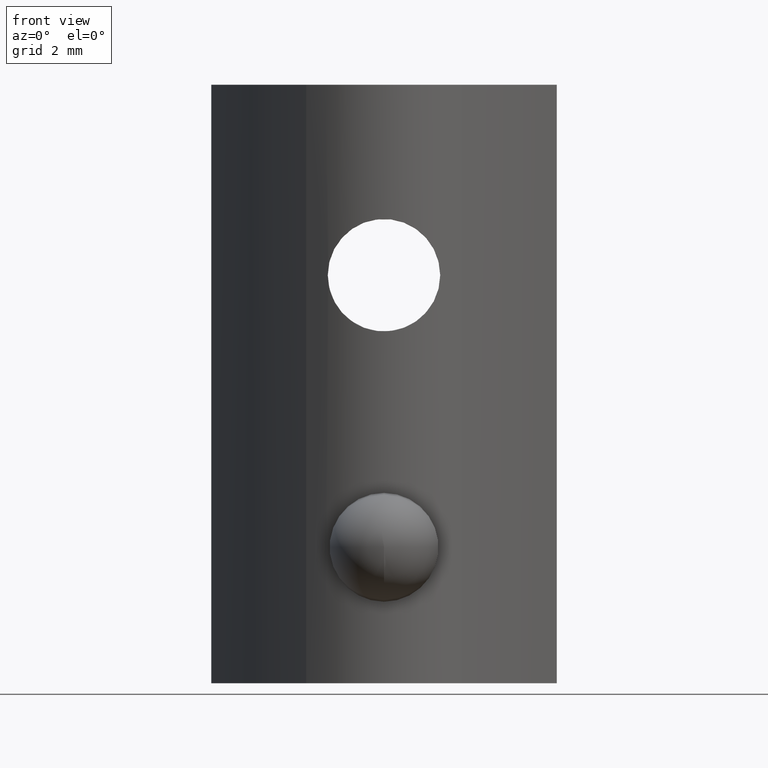
[diagram: clean part render]
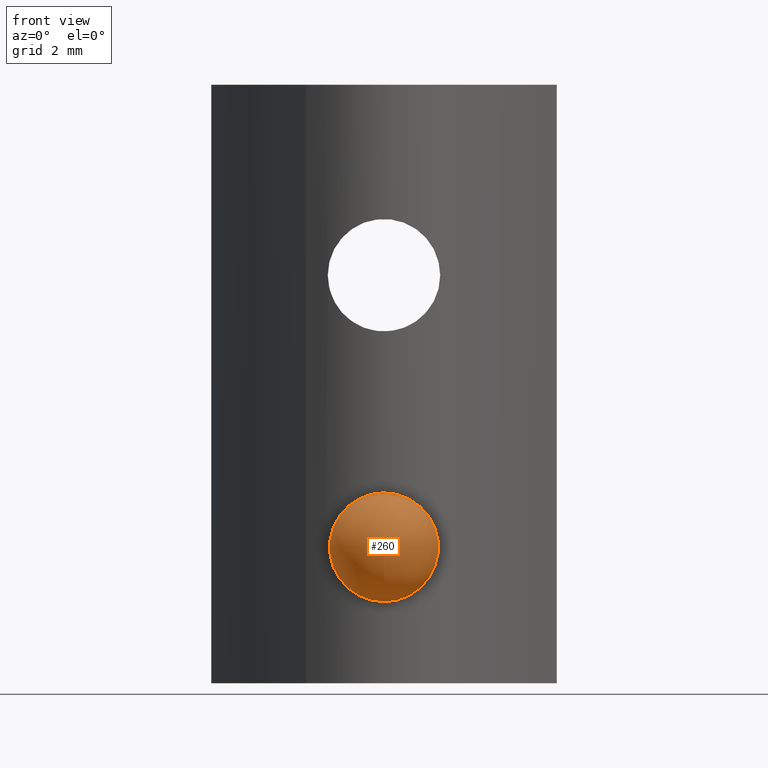
[diagram: same view with one face highlighted and labeled with its STEP entity id]
A machine part, front view. The second image highlights one B-rep face of the part: STEP entity #260.
In plain terms, the highlighted spherical surface has radius 2 mm.
Its self-contained STEP definition (entity closure, byte-faithful):
#15=SPHERICAL_SURFACE('',#280,2.);
#72=CIRCLE('',#279,2.);
#73=CIRCLE('',#281,2.);
#86=FACE_OUTER_BOUND('',#103,.T.);
#103=EDGE_LOOP('',(#184,#185));
#123=VERTEX_POINT('',#426);
#124=VERTEX_POINT('',#427);
#148=EDGE_CURVE('',#124,#123,#72,.T.);
#149=EDGE_CURVE('',#123,#124,#73,.T.);
#184=ORIENTED_EDGE('',*,*,#149,.T.);
#185=ORIENTED_EDGE('',*,*,#148,.T.);
#260=ADVANCED_FACE('',(#86),#15,.T.);
#279=AXIS2_PLACEMENT_3D('',#429,#314,#315);
#280=AXIS2_PLACEMENT_3D('',#430,#316,#317);
#281=AXIS2_PLACEMENT_3D('',#431,#318,#319);
#314=DIRECTION('center_axis',(4.44089209850062E-16,-1.,0.));
#315=DIRECTION('ref_axis',(-1.,-4.44089209850062E-16,0.));
#316=DIRECTION('center_axis',(0.,1.,0.));
#317=DIRECTION('ref_axis',(0.,0.,-1.));
#318=DIRECTION('center_axis',(4.44089209850062E-16,-1.,0.));
#319=DIRECTION('ref_axis',(-1.,-4.44089209850062E-16,0.));
#426=CARTESIAN_POINT('',(1.77635683940025E-15,6.66133814775091E-16,3.));
#427=CARTESIAN_POINT('',(1.77635683940025E-15,6.66133814775091E-16,7.));
#429=CARTESIAN_POINT('Origin',(0.,6.66133814775091E-16,5.));
#430=CARTESIAN_POINT('Origin',(0.,6.66133814775091E-16,5.));
#431=CARTESIAN_POINT('Origin',(0.,6.66133814775091E-16,5.));